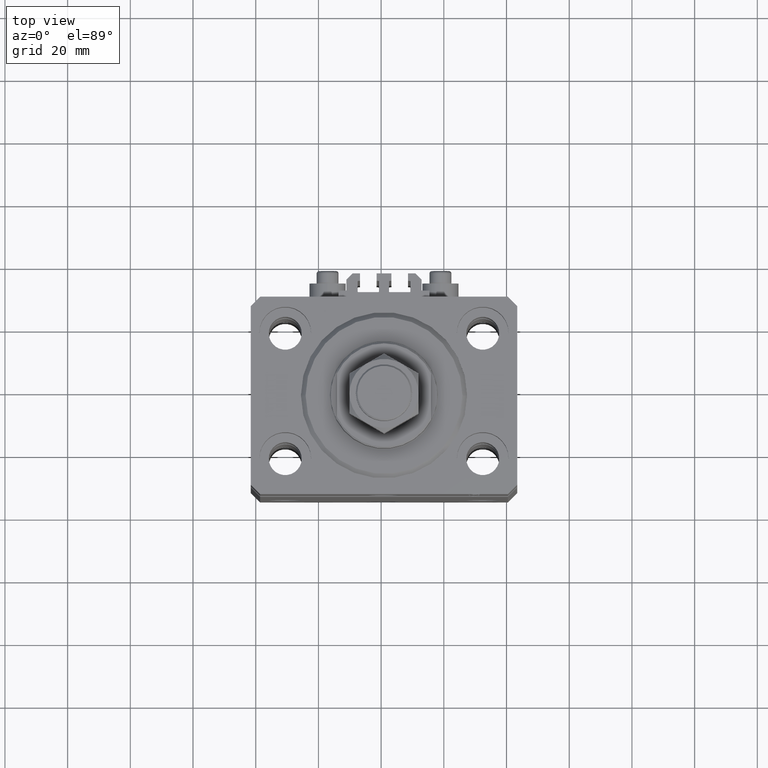
[diagram: clean part render]
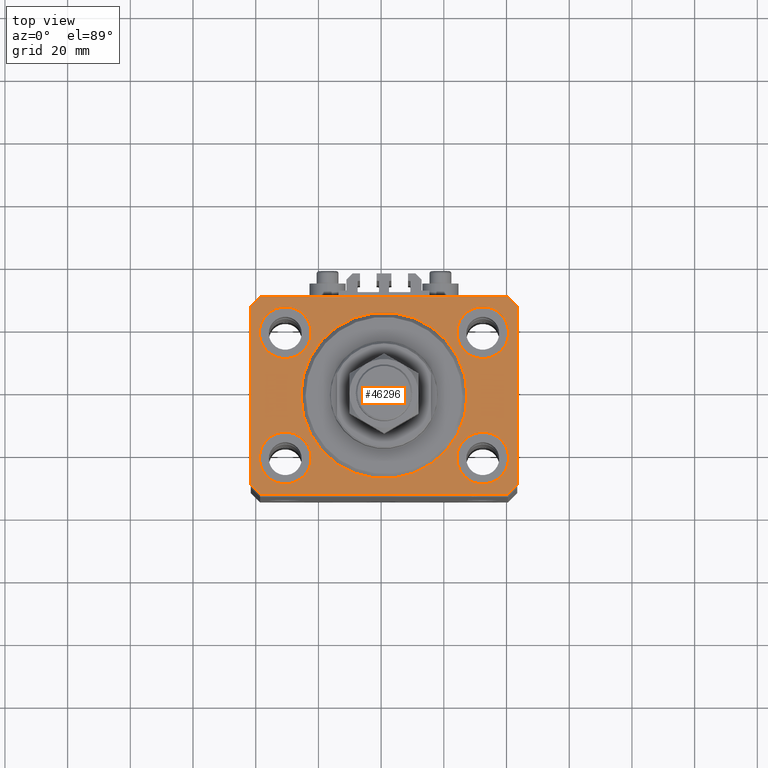
[diagram: same view with one face highlighted and labeled with its STEP entity id]
A machine part, top view. The second image highlights one B-rep face of the part: STEP entity #46296.
In plain terms, the highlighted planar face has unit normal (0, 0, 1).
Its self-contained STEP definition (entity closure, byte-faithful):
#19 = EDGE_CURVE ( 'NONE', #22324, #17285, #47003, .T. ) ;
#332 = CIRCLE ( 'NONE', #10791, 8.249999999999992895 ) ;
#434 = ORIENTED_EDGE ( 'NONE', *, *, #34830, .T. ) ;
#629 = ORIENTED_EDGE ( 'NONE', *, *, #6412, .F. ) ;
#884 = CARTESIAN_POINT ( 'NONE',  ( 42.50000000000051870, 28.49999999999995381, 0.000000000000000000 ) ) ;
#1334 = EDGE_CURVE ( 'NONE', #43686, #36335, #6883, .T. ) ;
#1581 = DIRECTION ( 'NONE',  ( 1.000000000000000000, 0.000000000000000000, 0.000000000000000000 ) ) ;
#1879 = EDGE_CURVE ( 'NONE', #48896, #38637, #37091, .T. ) ;
#2364 = LINE ( 'NONE', #39621, #17859 ) ;
#2615 = DIRECTION ( 'NONE',  ( -0.7071067811865356934, 0.7071067811865594521, 0.000000000000000000 ) ) ;
#3080 = CARTESIAN_POINT ( 'NONE',  ( 39.50000000000000711, -31.50000000000000000, 0.000000000000000000 ) ) ;
#3363 = VERTEX_POINT ( 'NONE', #25444 ) ;
#3686 = CIRCLE ( 'NONE', #22142, 8.249999999999992895 ) ;
#3774 = VERTEX_POINT ( 'NONE', #17765 ) ;
#3983 = EDGE_CURVE ( 'NONE', #3363, #43686, #2364, .T. ) ;
#4062 = CARTESIAN_POINT ( 'NONE',  ( -42.50000000000000000, -28.50000000000000000, 0.000000000000000000 ) ) ;
#4084 = VECTOR ( 'NONE', #36162, 1000.000000000000000 ) ;
#4197 = ORIENTED_EDGE ( 'NONE', *, *, #1334, .T. ) ;
#5691 = VECTOR ( 'NONE', #14630, 1000.000000000000000 ) ;
#6125 = DIRECTION ( 'NONE',  ( 1.000000000000000000, 0.000000000000000000, -0.000000000000000000 ) ) ;
#6332 = LINE ( 'NONE', #25957, #5691 ) ;
#6412 = EDGE_CURVE ( 'NONE', #26268, #29243, #10608, .T. ) ;
#6883 = LINE ( 'NONE', #25756, #21789 ) ;
#7342 = DIRECTION ( 'NONE',  ( 0.7071067811865483499, 0.7071067811865466846, 0.000000000000000000 ) ) ;
#7597 = AXIS2_PLACEMENT_3D ( 'NONE', #8026, #39214, #46024 ) ;
#8026 = CARTESIAN_POINT ( 'NONE',  ( 0.000000000000000000, 0.000000000000000000, 0.000000000000000000 ) ) ;
#8364 = EDGE_CURVE ( 'NONE', #17285, #18663, #32452, .T. ) ;
#8902 = FACE_BOUND ( 'NONE', #8993, .T. ) ;
#8945 = EDGE_LOOP ( 'NONE', ( #629, #40645 ) ) ;
#8993 = EDGE_LOOP ( 'NONE', ( #33638, #26259 ) ) ;
#9727 = CARTESIAN_POINT ( 'NONE',  ( -31.50000000000000000, 20.00000000000000000, 0.000000000000000000 ) ) ;
#10033 = DIRECTION ( 'NONE',  ( 1.000000000000000000, 0.000000000000000000, 0.000000000000000000 ) ) ;
#10608 = CIRCLE ( 'NONE', #46074, 8.249999999999992895 ) ;
#10791 = AXIS2_PLACEMENT_3D ( 'NONE', #15515, #22552, #11730 ) ;
#10832 = CIRCLE ( 'NONE', #14022, 26.50000000000000355 ) ;
#11278 = EDGE_CURVE ( 'NONE', #38637, #48896, #332, .T. ) ;
#11516 = VERTEX_POINT ( 'NONE', #25028 ) ;
#11730 = DIRECTION ( 'NONE',  ( 1.000000000000000000, 0.000000000000000000, 0.000000000000000000 ) ) ;
#12415 = CIRCLE ( 'NONE', #7597, 26.50000000000000355 ) ;
#12673 = FACE_BOUND ( 'NONE', #18997, .T. ) ;
#12729 = ORIENTED_EDGE ( 'NONE', *, *, #8364, .T. ) ;
#12769 = CARTESIAN_POINT ( 'NONE',  ( -42.50000000000000000, -28.50000000000000000, 0.000000000000000000 ) ) ;
#13058 = DIRECTION ( 'NONE',  ( 0.000000000000000000, 0.000000000000000000, 1.000000000000000000 ) ) ;
#13091 = DIRECTION ( 'NONE',  ( 0.000000000000000000, 0.000000000000000000, 1.000000000000000000 ) ) ;
#13499 = DIRECTION ( 'NONE',  ( 1.000000000000000000, 0.000000000000000000, 0.000000000000000000 ) ) ;
#13571 = CARTESIAN_POINT ( 'NONE',  ( -31.50000000000000000, -20.00000000000000000, 0.000000000000000000 ) ) ;
#14022 = AXIS2_PLACEMENT_3D ( 'NONE', #18359, #48800, #26402 ) ;
#14066 = VERTEX_POINT ( 'NONE', #19153 ) ;
#14494 = CARTESIAN_POINT ( 'NONE',  ( 31.50000000000000000, -20.00000000000000000, 0.000000000000000000 ) ) ;
#14630 = DIRECTION ( 'NONE',  ( 0.000000000000000000, -1.000000000000000000, 0.000000000000000000 ) ) ;
#14880 = EDGE_CURVE ( 'NONE', #29243, #26268, #3686, .T. ) ;
#14946 = CARTESIAN_POINT ( 'NONE',  ( -39.75000000000000000, -20.00000000000000000, 0.000000000000000000 ) ) ;
#15092 = CARTESIAN_POINT ( 'NONE',  ( -39.50000000000000711, 31.50000000000000000, 0.000000000000000000 ) ) ;
#15250 = CIRCLE ( 'NONE', #20892, 8.250000000000000000 ) ;
#15515 = CARTESIAN_POINT ( 'NONE',  ( 31.50000000000000000, -20.00000000000000000, 0.000000000000000000 ) ) ;
#15617 = DIRECTION ( 'NONE',  ( -1.000000000000000000, 0.000000000000000000, 0.000000000000000000 ) ) ;
#16197 = VECTOR ( 'NONE', #47158, 1000.000000000000000 ) ;
#16630 = ORIENTED_EDGE ( 'NONE', *, *, #19, .T. ) ;
#16866 = AXIS2_PLACEMENT_3D ( 'NONE', #9727, #26507, #13499 ) ;
#17042 = VECTOR ( 'NONE', #15617, 1000.000000000000000 ) ;
#17105 = VERTEX_POINT ( 'NONE', #49664 ) ;
#17285 = VERTEX_POINT ( 'NONE', #21470 ) ;
#17362 = DIRECTION ( 'NONE',  ( 1.000000000000000000, 0.000000000000000000, 0.000000000000000000 ) ) ;
#17444 = FACE_BOUND ( 'NONE', #8945, .T. ) ;
#17648 = VERTEX_POINT ( 'NONE', #26851 ) ;
#17684 = CARTESIAN_POINT ( 'NONE',  ( -31.50000000000000000, 20.00000000000000000, 0.000000000000000000 ) ) ;
#17765 = CARTESIAN_POINT ( 'NONE',  ( -23.25000000000000000, -20.00000000000000000, 0.000000000000000000 ) ) ;
#17859 = VECTOR ( 'NONE', #40354, 1000.000000000000000 ) ;
#18129 = CARTESIAN_POINT ( 'NONE',  ( 26.50000000000000355, 0.000000000000000000, 0.000000000000000000 ) ) ;
#18359 = CARTESIAN_POINT ( 'NONE',  ( 0.000000000000000000, 0.000000000000000000, 0.000000000000000000 ) ) ;
#18663 = VERTEX_POINT ( 'NONE', #21668 ) ;
#18997 = EDGE_LOOP ( 'NONE', ( #38037, #32442 ) ) ;
#19153 = CARTESIAN_POINT ( 'NONE',  ( -39.75000000000000000, 20.00000000000000000, 0.000000000000000000 ) ) ;
#19532 = ORIENTED_EDGE ( 'NONE', *, *, #3983, .T. ) ;
#19653 = CARTESIAN_POINT ( 'NONE',  ( 23.25000000000000355, 20.00000000000001066, 0.000000000000000000 ) ) ;
#20892 = AXIS2_PLACEMENT_3D ( 'NONE', #13571, #13091, #32200 ) ;
#20934 = AXIS2_PLACEMENT_3D ( 'NONE', #47883, #36059, #6125 ) ;
#21110 = AXIS2_PLACEMENT_3D ( 'NONE', #17684, #37062, #1581 ) ;
#21470 = CARTESIAN_POINT ( 'NONE',  ( -39.50000000000000711, -31.50000000000000000, 0.000000000000000000 ) ) ;
#21668 = CARTESIAN_POINT ( 'NONE',  ( 39.50000000000000711, -31.50000000000000000, 0.000000000000000000 ) ) ;
#21789 = VECTOR ( 'NONE', #2615, 1000.000000000000114 ) ;
#22142 = AXIS2_PLACEMENT_3D ( 'NONE', #33509, #47867, #48852 ) ;
#22324 = VERTEX_POINT ( 'NONE', #4062 ) ;
#22552 = DIRECTION ( 'NONE',  ( 0.000000000000000000, 0.000000000000000000, 1.000000000000000000 ) ) ;
#22790 = DIRECTION ( 'NONE',  ( 1.000000000000000000, 0.000000000000000000, 0.000000000000000000 ) ) ;
#23664 = VECTOR ( 'NONE', #7342, 1000.000000000000000 ) ;
#23867 = DIRECTION ( 'NONE',  ( 0.000000000000000000, 0.000000000000000000, 1.000000000000000000 ) ) ;
#24560 = ORIENTED_EDGE ( 'NONE', *, *, #35553, .F. ) ;
#25028 = CARTESIAN_POINT ( 'NONE',  ( -26.50000000000000355, 3.245314017740486554E-15, 0.000000000000000000 ) ) ;
#25444 = CARTESIAN_POINT ( 'NONE',  ( 42.50000000000000711, -28.50000000000000355, 0.000000000000000000 ) ) ;
#25756 = CARTESIAN_POINT ( 'NONE',  ( 42.50000000000051870, 28.49999999999995381, 0.000000000000000000 ) ) ;
#25957 = CARTESIAN_POINT ( 'NONE',  ( -42.50000000000000000, 28.50000000000000000, 0.000000000000000000 ) ) ;
#26074 = DIRECTION ( 'NONE',  ( 0.000000000000000000, 0.000000000000000000, 1.000000000000000000 ) ) ;
#26259 = ORIENTED_EDGE ( 'NONE', *, *, #1879, .F. ) ;
#26268 = VERTEX_POINT ( 'NONE', #29715 ) ;
#26402 = DIRECTION ( 'NONE',  ( 1.000000000000000000, 0.000000000000000000, 0.000000000000000000 ) ) ;
#26507 = DIRECTION ( 'NONE',  ( 0.000000000000000000, 0.000000000000000000, 1.000000000000000000 ) ) ;
#26660 = ORIENTED_EDGE ( 'NONE', *, *, #43416, .T. ) ;
#26817 = ORIENTED_EDGE ( 'NONE', *, *, #26951, .F. ) ;
#26851 = CARTESIAN_POINT ( 'NONE',  ( -23.25000000000000000, 20.00000000000000000, 0.000000000000000000 ) ) ;
#26872 = EDGE_LOOP ( 'NONE', ( #24560, #26817 ) ) ;
#26951 = EDGE_CURVE ( 'NONE', #14066, #17648, #36151, .T. ) ;
#27609 = ORIENTED_EDGE ( 'NONE', *, *, #29800, .T. ) ;
#28385 = CIRCLE ( 'NONE', #31586, 8.250000000000000000 ) ;
#29243 = VERTEX_POINT ( 'NONE', #19653 ) ;
#29715 = CARTESIAN_POINT ( 'NONE',  ( 39.74999999999999289, 20.00000000000001066, 0.000000000000000000 ) ) ;
#29800 = EDGE_CURVE ( 'NONE', #49702, #17105, #35587, .T. ) ;
#30412 = CARTESIAN_POINT ( 'NONE',  ( 31.50000000000000000, 20.00000000000001066, 0.000000000000000000 ) ) ;
#30665 = DIRECTION ( 'NONE',  ( 1.000000000000000000, 0.000000000000000000, 0.000000000000000000 ) ) ;
#31586 = AXIS2_PLACEMENT_3D ( 'NONE', #32906, #13058, #10033 ) ;
#32200 = DIRECTION ( 'NONE',  ( 1.000000000000000000, 0.000000000000000000, 0.000000000000000000 ) ) ;
#32260 = AXIS2_PLACEMENT_3D ( 'NONE', #14494, #26074, #22790 ) ;
#32442 = ORIENTED_EDGE ( 'NONE', *, *, #37075, .F. ) ;
#32452 = LINE ( 'NONE', #48542, #49242 ) ;
#32500 = EDGE_LOOP ( 'NONE', ( #36891, #39635 ) ) ;
#32906 = CARTESIAN_POINT ( 'NONE',  ( -31.50000000000000000, -20.00000000000000000, 0.000000000000000000 ) ) ;
#33509 = CARTESIAN_POINT ( 'NONE',  ( 31.50000000000000000, 20.00000000000001066, 0.000000000000000000 ) ) ;
#33638 = ORIENTED_EDGE ( 'NONE', *, *, #11278, .F. ) ;
#34725 = LINE ( 'NONE', #38750, #17042 ) ;
#34830 = EDGE_CURVE ( 'NONE', #36335, #49702, #34725, .T. ) ;
#35093 = CARTESIAN_POINT ( 'NONE',  ( -39.50000000000000711, 31.50000000000000000, 0.000000000000000000 ) ) ;
#35553 = EDGE_CURVE ( 'NONE', #17648, #14066, #46828, .T. ) ;
#35587 = LINE ( 'NONE', #35093, #16197 ) ;
#36059 = DIRECTION ( 'NONE',  ( 0.000000000000000000, 0.000000000000000000, 1.000000000000000000 ) ) ;
#36151 = CIRCLE ( 'NONE', #16866, 8.250000000000000000 ) ;
#36162 = DIRECTION ( 'NONE',  ( 0.7071067811865471286, -0.7071067811865479058, 0.000000000000000000 ) ) ;
#36335 = VERTEX_POINT ( 'NONE', #42387 ) ;
#36891 = ORIENTED_EDGE ( 'NONE', *, *, #40080, .F. ) ;
#37062 = DIRECTION ( 'NONE',  ( 0.000000000000000000, 0.000000000000000000, 1.000000000000000000 ) ) ;
#37075 = EDGE_CURVE ( 'NONE', #43183, #3774, #28385, .T. ) ;
#37091 = CIRCLE ( 'NONE', #32260, 8.249999999999992895 ) ;
#38037 = ORIENTED_EDGE ( 'NONE', *, *, #44358, .F. ) ;
#38637 = VERTEX_POINT ( 'NONE', #44896 ) ;
#38750 = CARTESIAN_POINT ( 'NONE',  ( 39.50000000000056843, 31.50000000000000000, 0.000000000000000000 ) ) ;
#39214 = DIRECTION ( 'NONE',  ( 0.000000000000000000, 0.000000000000000000, 1.000000000000000000 ) ) ;
#39464 = EDGE_CURVE ( 'NONE', #11516, #49214, #12415, .T. ) ;
#39621 = CARTESIAN_POINT ( 'NONE',  ( 42.50000000000000711, -28.50000000000000355, 0.000000000000000000 ) ) ;
#39635 = ORIENTED_EDGE ( 'NONE', *, *, #39464, .F. ) ;
#39874 = EDGE_CURVE ( 'NONE', #18663, #3363, #49355, .T. ) ;
#40080 = EDGE_CURVE ( 'NONE', #49214, #11516, #10832, .T. ) ;
#40083 = PLANE ( 'NONE',  #20934 ) ;
#40354 = DIRECTION ( 'NONE',  ( 8.886653596232072440E-15, 1.000000000000000000, 0.000000000000000000 ) ) ;
#40585 = FACE_BOUND ( 'NONE', #32500, .T. ) ;
#40645 = ORIENTED_EDGE ( 'NONE', *, *, #14880, .F. ) ;
#42092 = ORIENTED_EDGE ( 'NONE', *, *, #39874, .T. ) ;
#42387 = CARTESIAN_POINT ( 'NONE',  ( 39.50000000000056843, 31.50000000000000000, 0.000000000000000000 ) ) ;
#43183 = VERTEX_POINT ( 'NONE', #14946 ) ;
#43369 = FACE_OUTER_BOUND ( 'NONE', #48241, .T. ) ;
#43416 = EDGE_CURVE ( 'NONE', #17105, #22324, #6332, .T. ) ;
#43686 = VERTEX_POINT ( 'NONE', #884 ) ;
#44358 = EDGE_CURVE ( 'NONE', #3774, #43183, #15250, .T. ) ;
#44896 = CARTESIAN_POINT ( 'NONE',  ( 39.74999999999999289, -20.00000000000000000, 0.000000000000000000 ) ) ;
#45109 = CARTESIAN_POINT ( 'NONE',  ( 23.25000000000000355, -20.00000000000000000, 0.000000000000000000 ) ) ;
#46024 = DIRECTION ( 'NONE',  ( 1.000000000000000000, 0.000000000000000000, 0.000000000000000000 ) ) ;
#46074 = AXIS2_PLACEMENT_3D ( 'NONE', #30412, #23867, #30665 ) ;
#46296 = ADVANCED_FACE ( 'NONE', ( #12673, #8902, #17444, #48126, #40585, #43369 ), #40083, .T. ) ;
#46828 = CIRCLE ( 'NONE', #21110, 8.250000000000000000 ) ;
#47003 = LINE ( 'NONE', #12769, #4084 ) ;
#47158 = DIRECTION ( 'NONE',  ( -0.7071067811865471286, -0.7071067811865479058, 0.000000000000000000 ) ) ;
#47867 = DIRECTION ( 'NONE',  ( 0.000000000000000000, 0.000000000000000000, 1.000000000000000000 ) ) ;
#47883 = CARTESIAN_POINT ( 'NONE',  ( 0.000000000000000000, 0.000000000000000000, 0.000000000000000000 ) ) ;
#48126 = FACE_BOUND ( 'NONE', #26872, .T. ) ;
#48241 = EDGE_LOOP ( 'NONE', ( #434, #27609, #26660, #16630, #12729, #42092, #19532, #4197 ) ) ;
#48542 = CARTESIAN_POINT ( 'NONE',  ( -39.50000000000000711, -31.50000000000000000, 0.000000000000000000 ) ) ;
#48800 = DIRECTION ( 'NONE',  ( 0.000000000000000000, 0.000000000000000000, 1.000000000000000000 ) ) ;
#48852 = DIRECTION ( 'NONE',  ( 1.000000000000000000, 0.000000000000000000, 0.000000000000000000 ) ) ;
#48896 = VERTEX_POINT ( 'NONE', #45109 ) ;
#49214 = VERTEX_POINT ( 'NONE', #18129 ) ;
#49242 = VECTOR ( 'NONE', #17362, 1000.000000000000000 ) ;
#49355 = LINE ( 'NONE', #3080, #23664 ) ;
#49664 = CARTESIAN_POINT ( 'NONE',  ( -42.50000000000000000, 28.50000000000000000, 0.000000000000000000 ) ) ;
#49702 = VERTEX_POINT ( 'NONE', #15092 ) ;